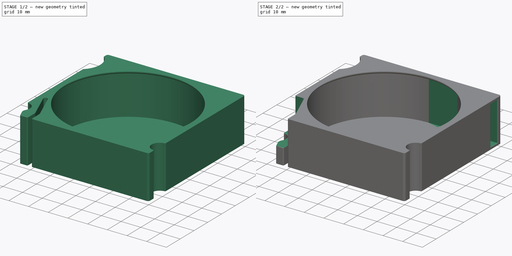
[diagram: build sequence overview — one tinted view per stage of 2, left to right]
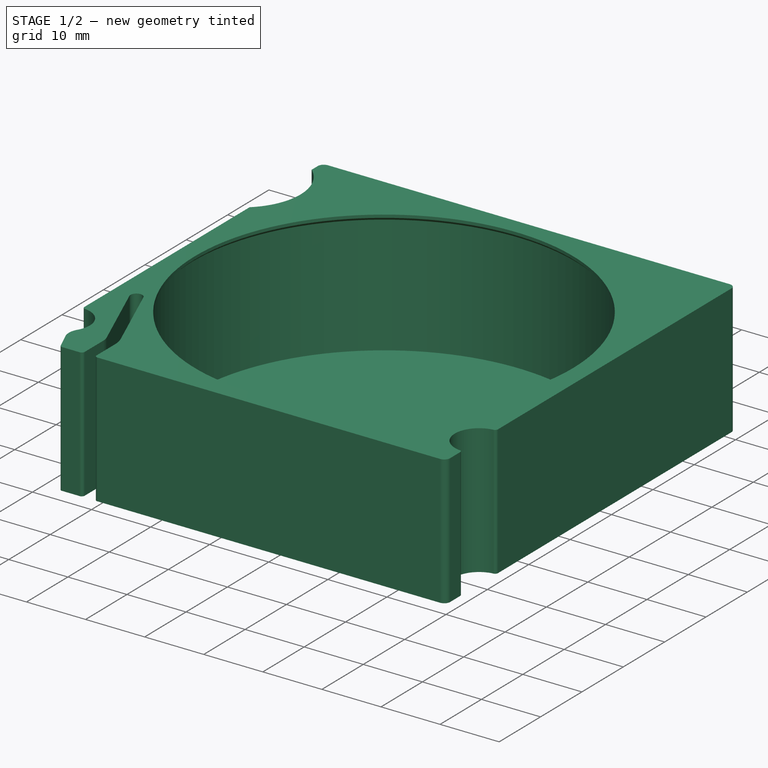
[diagram: stage 1 of 2 — iso view after this stage's code; geometry added in this stage tinted green]
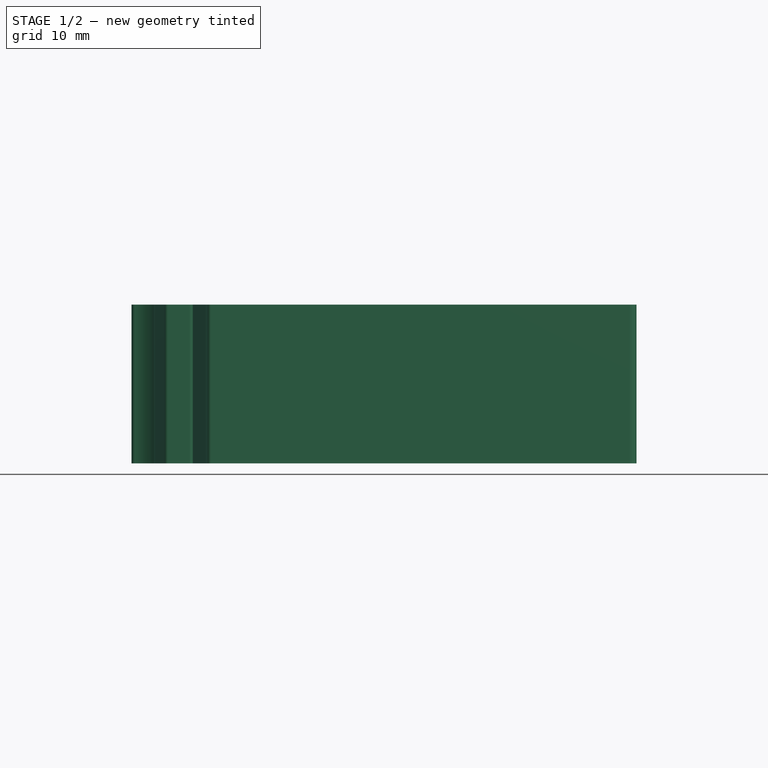
[diagram: stage 1 of 2 — front view after this stage's code; geometry added in this stage tinted green]
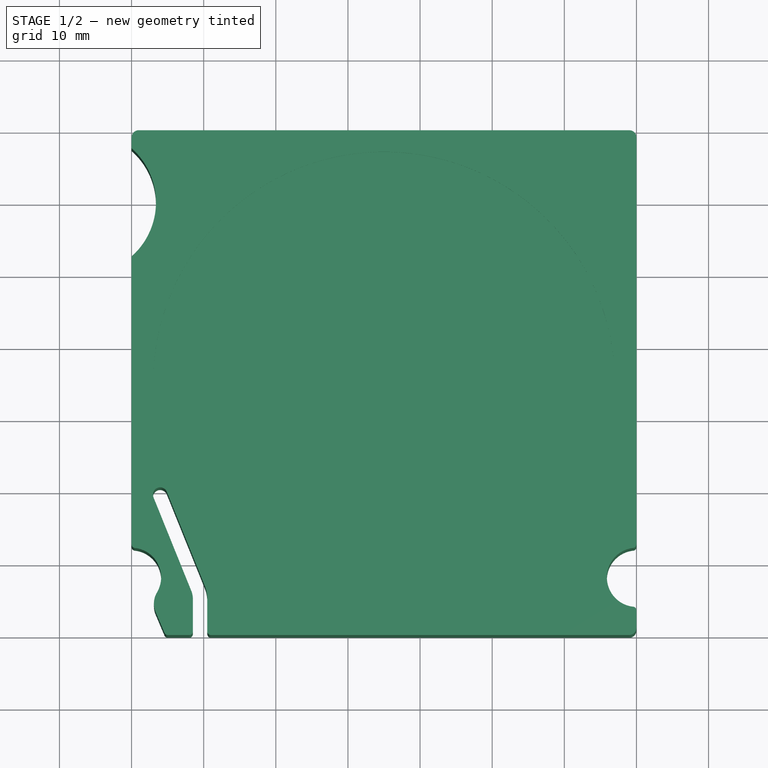
[diagram: stage 1 of 2 — top view after this stage's code; geometry added in this stage tinted green]
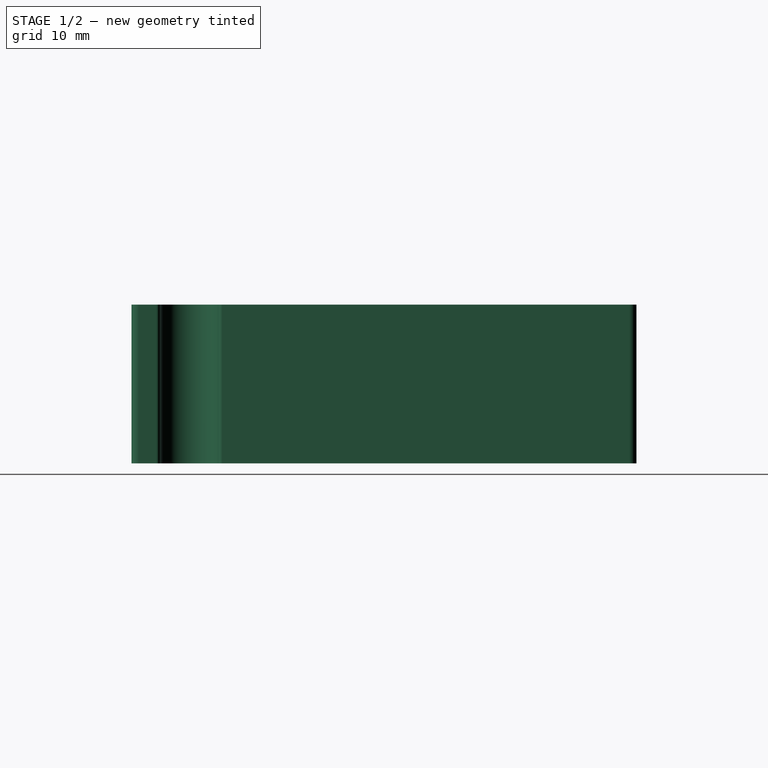
[diagram: stage 1 of 2 — right view after this stage's code; geometry added in this stage tinted green]
FCSTD DOCUMENT  (FreeCAD 0.19R24291 (Git))
Label: smdmagazine
License: All rights reserved
LicenseURL: http://en.wikipedia.org/wiki/All_rights_reserved
objects: Sketcher::SketchObject×4, PartDesign::Pocket×2, Spreadsheet::Sheet×1, PartDesign::Pad×1, PartDesign::Groove×1, PartDesign::Body×1
note: 13 computed .brp shape members not serialized (recipe doc carries the construction recipe); baked Part::Feature solids carry a one-line shape summary decoded from their .brp

FEATURE [Sketcher::SketchObject] Sketch
  FullyConstrained = false
  MapMode = 5
  Support = -> [XY_Plane001]
  expr: Constraints[63] = Spreadsheet.Length
  expr: Constraints[15] = Spreadsheet.Length / 2
  expr: Constraints[16] = Spreadsheet.Length / 2
  expr: Constraints[48] = Spreadsheet.DiameterRod
  expr: Constraints[67] = Spreadsheet.Length
  expr: Constraints[7] = Spreadsheet.RasiusBottom
  expr: Constraints[14] = Spreadsheet.Length - 5
  expr: Constraints[75] = Spreadsheet.DiameterRod / 2 + 3 - Spreadsheet.SpringCompression
  sketch-geometry (34):
    g0: LineSegment StartX=70 StartY=1 StartZ=0 EndX=70 EndY=3.4306 EndZ=0
    g1: LineSegment StartX=69 StartY=70 StartZ=0 EndX=1 EndY=70 EndZ=0
    g2: ArcOfCircle CenterX=1 CenterY=69 CenterZ=0 NormalX=0 NormalY=0 NormalZ=1 AngleXU=0 Radius=1 StartAngle=1.5708 EndAngle=3.14159
    g3: ArcOfCircle CenterX=69 CenterY=69 CenterZ=0 NormalX=0 NormalY=0 NormalZ=1 AngleXU=0 Radius=1 StartAngle=-1.8e-15 EndAngle=1.5708
    g4: GeomPoint X=70 Y=70 Z=0
    g5: ArcOfCircle CenterX=69 CenterY=1 CenterZ=0 NormalX=0 NormalY=0 NormalZ=1 AngleXU=0 Radius=1 StartAngle=4.71239 EndAngle=6.28319
    g6: ArcOfCircle CenterX=70 CenterY=8 CenterZ=0 NormalX=0 NormalY=0 NormalZ=1 AngleXU=0 Radius=4.1 StartAngle=1.69305 EndAngle=4.59013
    g7: LineSegment StartX=70 StartY=12.5694 StartZ=0 EndX=70 EndY=69 EndZ=0
    g8: LineSegment StartX=0 StartY=69 StartZ=0 EndX=0 EndY=67.5 EndZ=0
    g9: Circle CenterX=35 CenterY=35 CenterZ=0 NormalX=0 NormalY=0 NormalZ=1 AngleXU=0 Radius=32.5
    g10: ArcOfCircle CenterX=-5.4e-15 CenterY=8 CenterZ=0 NormalX=0 NormalY=0 NormalZ=1 AngleXU=0 Radius=4.1 StartAngle=5.74601 EndAngle=7.73173
    g11: ArcOfCircle CenterX=5.02547 CenterY=0.5 CenterZ=0 NormalX=0 NormalY=0 NormalZ=1 AngleXU=0 Radius=0.5 StartAngle=3.54302 EndAngle=4.71239
    g12: ArcOfCircle CenterX=6.1 CenterY=4.36682 CenterZ=0 NormalX=0 NormalY=0 NormalZ=1 AngleXU=0 Radius=3 StartAngle=2.60441 EndAngle=3.54302
    g13: LineSegment StartX=3.33849 StartY=3.19461 StartZ=0 EndX=4.56521 EndY=0.304635 EndZ=0
    g14: LineSegment StartX=69 StartY=0 StartZ=0 EndX=11 EndY=0 EndZ=0
    g15: LineSegment StartX=5.02547 StartY=1e-16 StartZ=0 EndX=8 EndY=1e-16 EndZ=0
    g16: ArcOfCircle CenterX=8 CenterY=0.5 CenterZ=0 NormalX=0 NormalY=0 NormalZ=1 AngleXU=0 Radius=0.5 StartAngle=4.71239 EndAngle=6.28319
    g17: LineSegment StartX=8.5 StartY=0.5 StartZ=0 EndX=8.5 EndY=5 EndZ=0
    g18: ArcOfCircle CenterX=11 CenterY=0.5 CenterZ=0 NormalX=0 NormalY=0 NormalZ=1 AngleXU=0 Radius=0.5 StartAngle=3.14159 EndAngle=4.71239
    g19: LineSegment StartX=10.5 StartY=0.5 StartZ=0 EndX=10.5 EndY=5 EndZ=0
    g20: ArcOfCircle CenterX=5.5 CenterY=5 CenterZ=0 NormalX=0 NormalY=0 NormalZ=1 AngleXU=0 Radius=3 StartAngle=0 EndAngle=0.383972
    g21: ArcOfCircle CenterX=5.5 CenterY=5 CenterZ=0 NormalX=0 NormalY=0 NormalZ=1 AngleXU=0 Radius=5 StartAngle=0 EndAngle=0.383972
    g22: LineSegment StartX=8.28155 StartY=6.12382 StartZ=0 EndX=3.03706 EndY=19.1044 EndZ=0
    g23: LineSegment StartX=10.1359 StartY=6.87303 StartZ=0 EndX=4.89143 EndY=19.8536 EndZ=0
    g24: ArcOfCircle CenterX=69.5 CenterY=12.5694 CenterZ=0 NormalX=0 NormalY=0 NormalZ=1 AngleXU=0 Radius=0.5 StartAngle=4.71239 EndAngle=6.28319
    g25: ArcOfCircle CenterX=69.5 CenterY=3.4306 CenterZ=0 NormalX=0 NormalY=0 NormalZ=1 AngleXU=0 Radius=0.5 StartAngle=0 EndAngle=1.5708
    g26: ArcOfCircle CenterX=0.5 CenterY=12.5694 CenterZ=0 NormalX=0 NormalY=0 NormalZ=1 AngleXU=0 Radius=0.5 StartAngle=3.14159 EndAngle=4.71239
    g27: ArcOfCircle CenterX=-6.61438 CenterY=60 CenterZ=0 NormalX=0 NormalY=0 NormalZ=1 AngleXU=0 Radius=10 StartAngle=5.43512 EndAngle=7.13125
    g28: LineSegment StartX=-1.8e-15 StartY=52.5 StartZ=0 EndX=-5.4e-15 EndY=12.5694 EndZ=0
    g29: ArcOfCircle CenterX=70 CenterY=8 CenterZ=0 NormalX=0 NormalY=0 NormalZ=1 AngleXU=0 Radius=65.9 StartAngle=3.14159 EndAngle=3.26329
    g30: ArcOfCircle CenterX=3.96424 CenterY=19.479 CenterZ=0 NormalX=0 NormalY=0 NormalZ=1 AngleXU=0 Radius=1 StartAngle=0.383972 EndAngle=1.5708
    g31: ArcOfCircle CenterX=3.96424 CenterY=19.479 CenterZ=0 NormalX=0 NormalY=0 NormalZ=1 AngleXU=0 Radius=1 StartAngle=1.5708 EndAngle=3.52556
    g32: LineSegment StartX=3.96424 StartY=19.479 StartZ=0 EndX=3.96424 EndY=20.479 EndZ=0
    g33: LineSegment StartX=4.89143 StartY=19.8536 StartZ=0 EndX=3.03706 EndY=19.1044 EndZ=0
  constraints (108):
    c: Horizontal(g1)
    c: Vertical(g0)
    c: PointOnObject(g4,g1)
    c: PointOnObject(g4,g0)
    c: Tangent(g1,g3) = -1.5708
    c: Tangent(g0,g5) = -1.5708
    c: Radius(g3) = 1
    c: Radius(g5) = 1
    c: PointOnObject(g6,g0)
    c: Tangent(g0,g7)
    c: Tangent(g7,g3) = -1.5708
    c: Coincident(g8,g2)
    c: Vertical(g8)
    c: PointOnObject(g2,g-2)
    c: Diameter(g9) = 65
    c: DistanceX(g-1,g9) = 35
    c: DistanceY(g-1,g9) = 35
    c: Coincident(g13,g12)
    c: Coincident(g13,g11)
    c: Coincident(g12,g10)
    c: Coincident(g14,g5)
    c: PointOnObject(g14,g-1)
    c: Horizontal(g14)
    c: Coincident(g15,g11)
    c: PointOnObject(g15,g-1)
    c: Horizontal(g15)
    c: Coincident(g16,g15)
    c: Coincident(g17,g16)
    c: Coincident(g18,g14)
    c: Coincident(g19,g18)
    c: Vertical(g19)
    c: Equal(g16,g18)
    c: Horizontal(g16,g18)
    c: Vertical(g17)
    c: Coincident(g20,g17)
    c: Coincident(g21,g20)
    c: Coincident(g21,g19)
    c: Coincident(g22,g20)
    c: Coincident(g23,g21)
    c: Tangent(g23,g21)
    c: Parallel(g23,g22)
    c: Equal(g6,g10)
    c: Equal(g16,g11)
    c: Tangent(g7,g24) = -1.5708
    c: Equal(g24,g25)
    c: Radius(g24) = 0.5
    c: Vertical(g28,g10)
    c: Vertical(g11,g11)
    c: Diameter(g10) = 8.2
    c: Equal(g11,g26)
    c: Angle(g-2,g13) = 0.401426
    c: Horizontal(g16,g16)
    c: Vertical(g18,g14)
    c: Vertical(g5,g5)
    c: Coincident(g28,g26)
    c: Radius(g18) = 0.5
    c: Coincident(g26,g10)
    c: Tangent(g12,g10)
    c: DistanceX(g16,g18) = 2
    c: Horizontal(g6,g10)
    c: Coincident(g25,g6)
    c: Coincident(g25,g0)
    c: Coincident(g6,g24)
    c: DistanceY(g5,g1) = 70
    c: Vertical(g1,g2)
    c: Horizontal(g2,g2)
    c: Coincident(g1,g2)
    c: DistanceX(g2,g3) = 70
    c: Vertical(g25,g6)
    c: Horizontal(g25,g0)
    c: Vertical(g6,g24)
    c: DistanceY(g5,g6) = 8
    c: Horizontal(g26,g28)
    c: Vertical(g26,g10)
    c: Radius(g12) = 3
    c: DistanceX(g10,g12) = 6.1
    c: Angle(g22,g17) = 2.75762
    c: Tangent(g11,g13)
    c: Horizontal(g20,g17)
    c: Distance(g23) = 14
    c: Horizontal(g17,g19)
    c: DistanceY(g14,g19) = 5
    c: Tangent(g20,g22)
    c: Radius(g20) = 3
    c: Equal(g3,g2)
    c: Radius(g27) = 10
    c: DistanceY(g27,g27) = 15
    c: DistanceY(g27,g1) = 10
    c: Coincident(g8,g27)
    c: Coincident(g28,g27)
    c: Tangent(g8,g28)
    c: Coincident(g29,g6)
    c: PointOnObject(g29,g10)
    c: Tangent(g29,g10)
    c: PointOnObject(g29,g-1)
    c: DistanceX(g-1,g18) = 10.5
    c: Coincident(g30,g23)
    c: Coincident(g31,g30)
    c: Coincident(g31,g22)
    c: Coincident(g31,g30)
    c: Coincident(g32,g30)
    c: Coincident(g32,g30)
    c: Vertical(g32)
    c: Coincident(g33,g23)
    c: Coincident(g33,g22)
    c: PointOnObject(g30,g33)
    c: Tangent(g22,g31)
    c: Tangent(g12,g13)
FEATURE [Spreadsheet::Sheet] Spreadsheet
  cells = A2=Length; B2(Length)=70; A3=TapeDepth; B3(TapeDepth)=20; A4=TapeSlot; B4(TapeSlot)=5; A5=RadiusTop; B5(RadiusTop)=5; A6=RasiusBottom; B6(RasiusBottom)=1; A7=DiameterRod; B7(DiameterRod)=8.199999999999999; A8=SpringCompression; B8(SpringCompression)=1
FEATURE [PartDesign::Pad] Pad  label="MainBody"
  Direction = (1,1,1)
  Length = 22
  Length2 = 100
  Profile = -> Sketch
  Type = 0
  expr: Length = Spreadsheet.TapeDepth + 2
FEATURE [Sketcher::SketchObject] Sketch001
  AttachmentOffset = pos=(35,0,-35) rot=(0,0,1;0rad)
  FullyConstrained = true
  MapMode = 5
  Placement = pos=(35,35,7.8e-15) rot=(1,0,0;1.5708rad)
  Support = -> [XZ_Plane001]
  expr: Constraints[15] = Spreadsheet.Length / 2 - 2.5
  expr: Constraints[16] = Spreadsheet.TapeDepth
  expr: .AttachmentOffset.Base.y = 0
  expr: .AttachmentOffset.Base.x = Spreadsheet.Length / 2
  expr: .AttachmentOffset.Base.z = -Spreadsheet.Length / 2
  sketch-geometry (6):
    g0: LineSegment StartX=0 StartY=1 StartZ=0 EndX=-32.5 EndY=1 EndZ=0
    g1: LineSegment StartX=-32.5 StartY=1 StartZ=0 EndX=-32.5 EndY=21 EndZ=0
    g2: LineSegment StartX=-32.5 StartY=21 StartZ=0 EndX=-32 EndY=21.5 EndZ=0
    g3: LineSegment StartX=-32 StartY=21.5 StartZ=0 EndX=-32 EndY=22 EndZ=0
    g4: LineSegment StartX=-32 StartY=22 StartZ=0 EndX=0 EndY=22 EndZ=0
    g5: LineSegment StartX=0 StartY=1 StartZ=0 EndX=0 EndY=22 EndZ=0
  constraints (18):
    c: Horizontal(g0)
    c: Coincident(g1,g0)
    c: Vertical(g1)
    c: Coincident(g2,g1)
    c: Coincident(g3,g2)
    c: Vertical(g3)
    c: Coincident(g4,g3)
    c: Horizontal(g4)
    c: Coincident(g5,g0)
    c: Coincident(g5,g4)
    c: Vertical(g5)
    c: Angle(g1,g2) = 2.35619
    c: DistanceY(g3,g3) = 0.5
    c: DistanceY(g1,g2) = 0.5
    c: DistanceY(g-1,g0) = 1
    c: DistanceX(g0,g0) = 32.5
    c: DistanceY(g1,g1) = 20
    c: Vertical(g0,g-1)
FEATURE [PartDesign::Groove] Groove  label="MainRecess"
  Angle = 360
  Axis = (0,-2e-16,1)
  Base = (35,35,7.8e-15)
  BaseFeature = -> Pad
  Profile = -> Sketch001
  ReferenceAxis = -> Sketch001 [V_Axis]
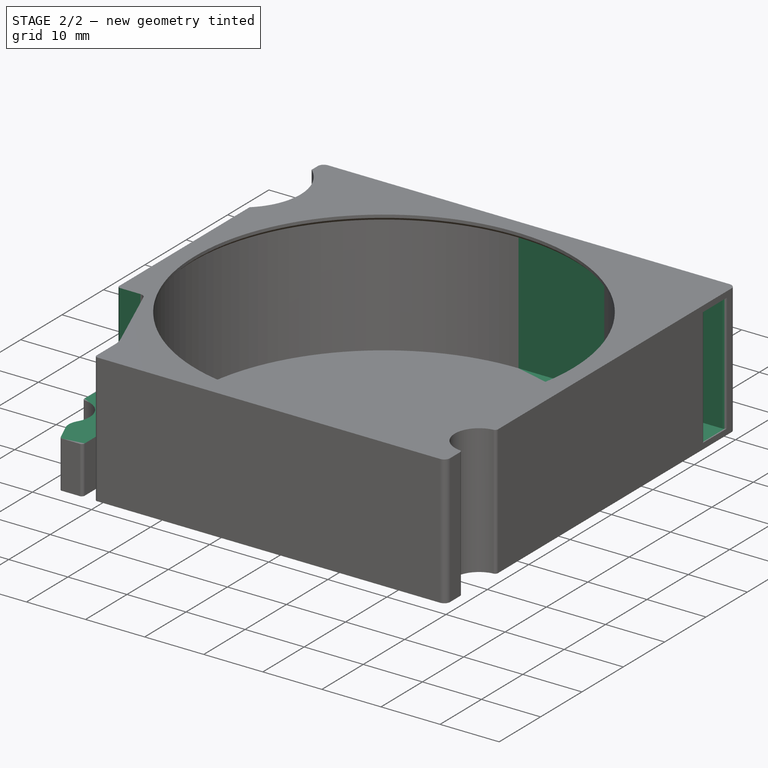
[diagram: stage 2 of 2 — iso view after this stage's code; geometry added in this stage tinted green]
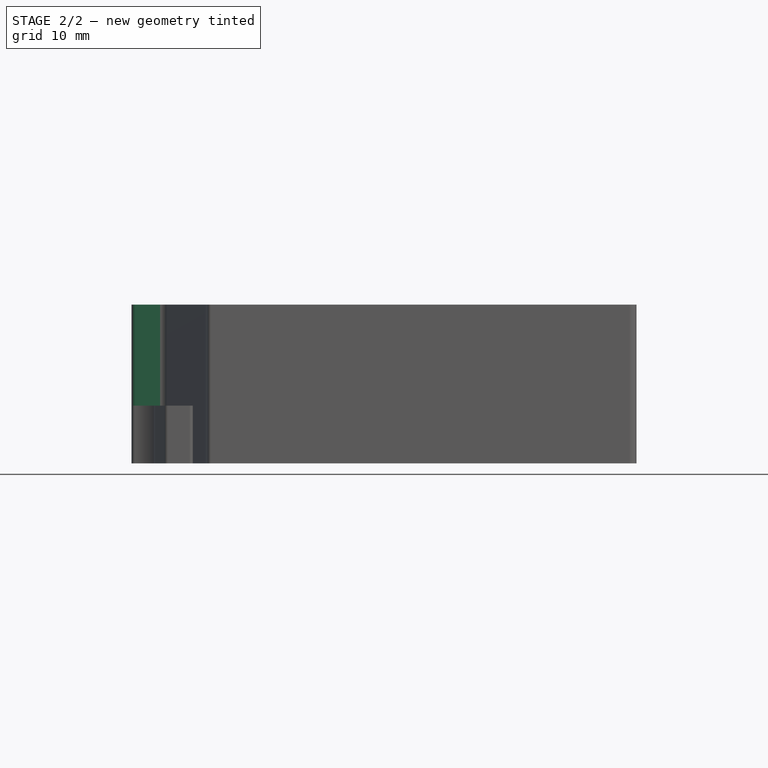
[diagram: stage 2 of 2 — front view after this stage's code; geometry added in this stage tinted green]
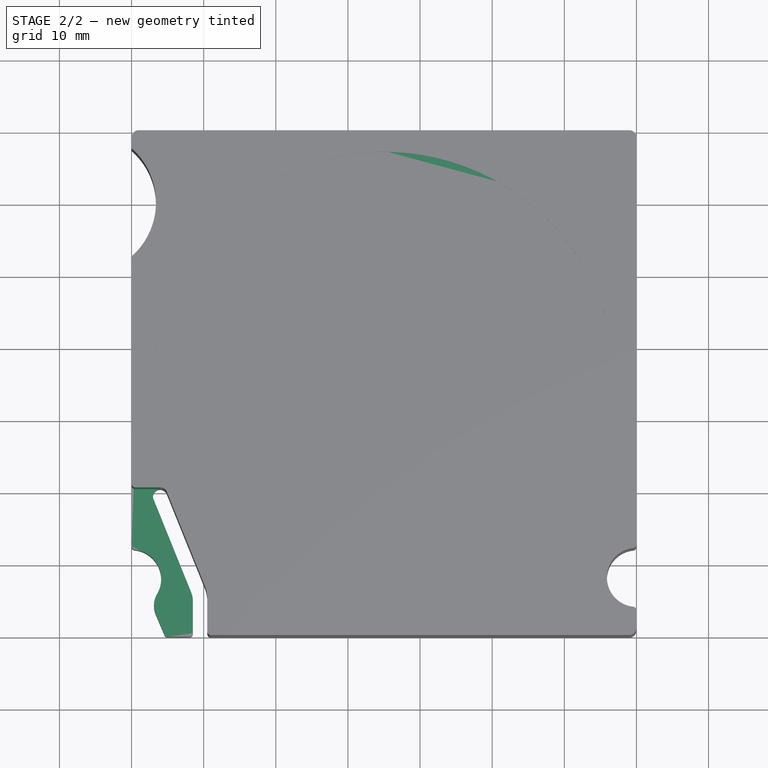
[diagram: stage 2 of 2 — top view after this stage's code; geometry added in this stage tinted green]
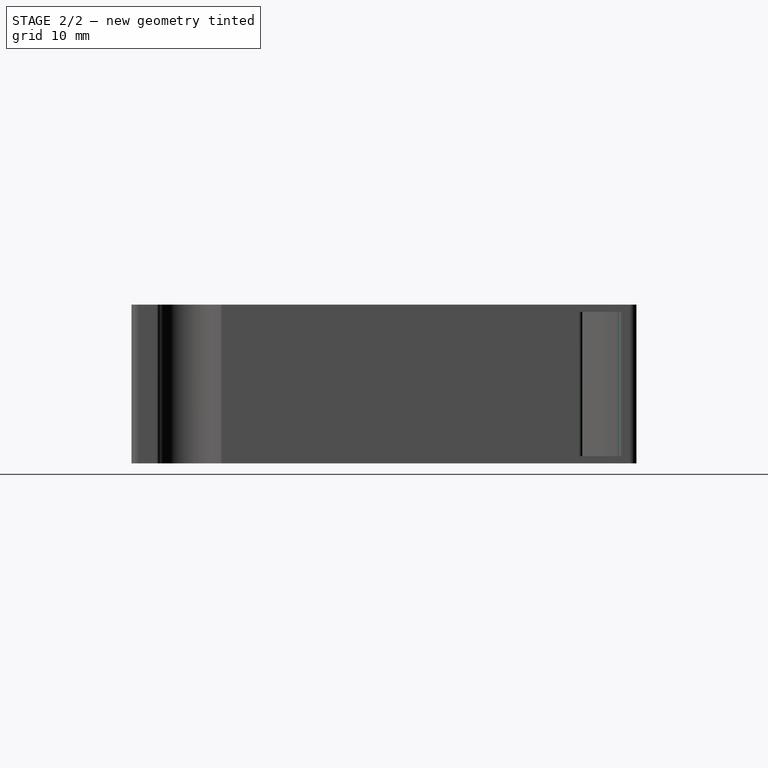
[diagram: stage 2 of 2 — right view after this stage's code; geometry added in this stage tinted green]
FEATURE [Sketcher::SketchObject] Sketch002
  AttachmentOffset = pos=(0,0,1) rot=(0,0,1;0rad)
  FullyConstrained = true
  MapMode = 5
  Placement = pos=(0,0,1) rot=(0,0,1;0rad)
  Support = -> [XY_Plane001]
  expr: Constraints[16] = Spreadsheet.Length
  expr: Constraints[15] = Spreadsheet.Length / 2 - 2.5
  expr: Constraints[17] = Spreadsheet.TapeSlot
  expr: Constraints[27] = Spreadsheet.Length
  expr: Constraints[2] = Spreadsheet.Length / 2
  expr: Constraints[3] = Spreadsheet.Length / 2
  sketch-geometry (24):
    g0: LineSegment StartX=35 StartY=67.5 StartZ=0 EndX=57.5 EndY=67.5 EndZ=0
    g1: ArcOfCircle CenterX=35 CenterY=35 CenterZ=0 NormalX=0 NormalY=0 NormalZ=1 AngleXU=0 Radius=32.5 StartAngle=0.958241 EndAngle=1.5708
    g2: ArcOfCircle CenterX=69.5 CenterY=68 CenterZ=0 NormalX=0 NormalY=0 NormalZ=1 AngleXU=0 Radius=0.5 StartAngle=4.71239 EndAngle=6.28319
    g3: ArcOfCircle CenterX=69.5 CenterY=62 CenterZ=0 NormalX=0 NormalY=0 NormalZ=1 AngleXU=0 Radius=0.5 StartAngle=-1.8e-15 EndAngle=1.5708
    g4: LineSegment StartX=70 StartY=68 StartZ=0 EndX=70 EndY=62 EndZ=0
    g5: ArcOfCircle CenterX=57.5 CenterY=68 CenterZ=0 NormalX=0 NormalY=0 NormalZ=1 AngleXU=0 Radius=0.5 StartAngle=4.71239 EndAngle=6.28319
    g6: ArcOfCircle CenterX=57.5 CenterY=69.5 CenterZ=0 NormalX=0 NormalY=0 NormalZ=1 AngleXU=0 Radius=0.5 StartAngle=2e-16 EndAngle=1.5708
    g7: LineSegment StartX=60 StartY=67.5 StartZ=0 EndX=62.3536 EndY=69.8536 EndZ=0
    g8: ArcOfCircle CenterX=62.7071 CenterY=69.5 CenterZ=0 NormalX=0 NormalY=0 NormalZ=1 AngleXU=0 Radius=0.5 StartAngle=1.5708 EndAngle=2.3562
    g9: LineSegment StartX=58 StartY=69.5 StartZ=0 EndX=58 EndY=68 EndZ=0
    g10: LineSegment StartX=60 StartY=67.5 StartZ=0 EndX=69.5 EndY=67.5 EndZ=0
    g11: LineSegment StartX=69.5 StartY=62.5 StartZ=0 EndX=53.9737 EndY=62.5 EndZ=0
    g12: ArcOfCircle CenterX=53.9737 CenterY=62 CenterZ=0 NormalX=0 NormalY=0 NormalZ=1 AngleXU=0 Radius=0.5 StartAngle=1.5708 EndAngle=4.09985
    g13: LineSegment StartX=57.5 StartY=70 StartZ=0 EndX=57.5 EndY=70.2 EndZ=0
    g14: LineSegment StartX=62.7071 StartY=70 StartZ=0 EndX=62.7071 EndY=70.2 EndZ=0
    g15: LineSegment StartX=62.7071 StartY=70.2 StartZ=0 EndX=57.5 EndY=70.2 EndZ=0
    g16: LineSegment StartX=70 StartY=68 StartZ=0 EndX=70.2 EndY=68 EndZ=0
    g17: LineSegment StartX=70.2 StartY=68 StartZ=0 EndX=70.2 EndY=62 EndZ=0
    g18: LineSegment StartX=70 StartY=62 StartZ=0 EndX=70.2 EndY=62 EndZ=0
    g19: ArcOfCircle CenterX=35 CenterY=35 CenterZ=0 NormalX=0 NormalY=0 NormalZ=1 AngleXU=0 Radius=32.3 StartAngle=0.958241 EndAngle=1.5708
    g20: LineSegment StartX=35 StartY=67.5 StartZ=0 EndX=35 EndY=67.3 EndZ=0
    g21: LineSegment StartX=53.6862 StartY=61.5909 StartZ=0 EndX=53.5712 EndY=61.4273 EndZ=0
    g22: LineSegment StartX=35 StartY=67.3 StartZ=0 EndX=35 EndY=35 EndZ=0
    g23: LineSegment StartX=35 StartY=35 StartZ=0 EndX=53.5712 EndY=61.4273 EndZ=0
  constraints (74):
    c: Horizontal(g0)
    c: Coincident(g1,g0)
    c: DistanceX(g-1,g1) = 35
    c: DistanceY(g-1,g1) = 35
    c: Vertical(g0,g1)
    c: Coincident(g2,g10)
    c: Vertical(g10,g3)
    c: Horizontal(g2,g2)
    c: Horizontal(g3,g3)
    c: Radius(g2) = 0.5
    c: Vertical(g2,g10)
    c: Vertical(g3,g3)
    c: Equal(g2,g3)
    c: Coincident(g4,g2)
    c: Coincident(g4,g3)
    c: Radius(g1) = 32.5
    c: DistanceX(g-1,g3) = 70
    c: DistanceY(g3,g10) = 5
    c: Coincident(g8,g7)
    c: Coincident(g9,g6)
    c: Coincident(g9,g5)
    c: Vertical(g9)
    c: Vertical(g5,g5)
    c: Vertical(g5,g6)
    c: Vertical(g6,g6)
    c: Horizontal(g5,g5)
    c: Horizontal(g6,g6)
    c: DistanceY(g-1,g6) = 70
    c: Tangent(g7,g8)
    c: Equal(g2,g6)
    c: Coincident(g0,g5)
    c: Tangent(g0,g10)
    c: Equal(g8,g6)
    c: DistanceX(g5,g10) = 2
    c: DistanceX(g10,g2) = 10
    c: Vertical(g8,g8)
    c: Angle(g10,g7) = 0.785398
    c: Coincident(g7,g10)
    c: Coincident(g11,g3)
    c: Horizontal(g11)
    c: Coincident(g12,g11)
    c: Coincident(g12,g1)
    c: Vertical(g12,g11)
    c: Tangent(g12,g1)
    c: Equal(g5,g12)
    c: Coincident(g13,g6)
    c: Coincident(g14,g8)
    c: Vertical(g14)
    c: Coincident(g15,g14)
    c: Coincident(g15,g13)
    c: Horizontal(g15)
    c: Vertical(g13)
    c: DistanceY(g14,g14) = 0.2
    c: Horizontal(g6,g8)
    c: Coincident(g16,g2)
    c: Coincident(g17,g16)
    c: Vertical(g17)
    c: Coincident(g18,g3)
    c: Coincident(g18,g17)
    c: Horizontal(g18)
    c: Horizontal(g16)
    c: DistanceX(g16,g16) = 0.2
    c: Coincident(g19,g1)
    c: Coincident(g20,g0)
    c: Coincident(g20,g19)
    c: Coincident(g21,g1)
    c: Coincident(g21,g19)
    c: Coincident(g22,g19)
    c: Coincident(g22,g1)
    c: Vertical(g22)
    c: Coincident(g23,g1)
    c: Coincident(g23,g19)
    c: Parallel(g21,g23)
    c: Distance(g21) = 0.2
FEATURE [PartDesign::Pocket] Pocket  label="Slot"
  BaseFeature = -> Groove
  Length = 20
  Length2 = 100
  Profile = -> Sketch002
  Refine = true
  Reversed = true
  Type = 0
  expr: Length = Spreadsheet.TapeDepth
FEATURE [Sketcher::SketchObject] Sketch003
  AttachmentOffset = pos=(0,0,22) rot=(0,0,1;0rad)
  FullyConstrained = true
  MapMode = 5
  Placement = pos=(0,0,22) rot=(0,0,1;0rad)
  Support = -> [XY_Plane001]
  expr: .AttachmentOffset.Base.z = Spreadsheet.TapeDepth + 2
  sketch-geometry (13):
    g0: LineSegment StartX=0 StartY=0 StartZ=0 EndX=10.5 EndY=0 EndZ=0
    g1: LineSegment StartX=10.5 StartY=0 StartZ=0 EndX=10.5 EndY=5 EndZ=0
    g2: ArcOfCircle CenterX=5.5 CenterY=5 CenterZ=0 NormalX=0 NormalY=0 NormalZ=1 AngleXU=0 Radius=5 StartAngle=6.28319 EndAngle=6.66715
    g3: LineSegment StartX=10.1359 StartY=6.873 StartZ=0 EndX=4.89144 EndY=19.8536 EndZ=0
    g4: ArcOfCircle CenterX=3.96425 CenterY=19.479 CenterZ=0 NormalX=0 NormalY=0 NormalZ=1 AngleXU=0 Radius=1 StartAngle=0.383973 EndAngle=1.5708
    g5: LineSegment StartX=0 StartY=20.979 StartZ=0 EndX=0 EndY=0 EndZ=0
    g6: ArcOfCircle CenterX=0.5 CenterY=20.979 CenterZ=0 NormalX=0 NormalY=0 NormalZ=1 AngleXU=0 Radius=0.5 StartAngle=3.14159 EndAngle=4.71239
    g7: LineSegment StartX=3.96425 StartY=20.479 StartZ=0 EndX=0.5 EndY=20.479 EndZ=0
    g8: LineSegment StartX=0 StartY=20.979 StartZ=0 EndX=-0.2 EndY=20.979 EndZ=0
    g9: LineSegment StartX=-0.2 StartY=20.979 StartZ=0 EndX=-0.2 EndY=-0.2 EndZ=0
    g10: LineSegment StartX=-0.2 StartY=-0.2 StartZ=0 EndX=10.5 EndY=-0.2 EndZ=0
    g11: LineSegment StartX=10.5 StartY=0 StartZ=0 EndX=10.5 EndY=-0.2 EndZ=0
    g12: LineSegment StartX=3.96425 StartY=20.479 StartZ=0 EndX=3.96425 EndY=19.479 EndZ=0
  constraints (39):
    c: Coincident(g0,g-1)
    c: PointOnObject(g0,g-1)
    c: Coincident(g1,g0)
    c: Vertical(g1)
    c: Coincident(g2,g1)
    c: Coincident(g3,g2)
    c: Coincident(g4,g3)
    c: Coincident(g5,g0)
    c: Tangent(g3,g2)
    c: Tangent(g1,g2)
    c: DistanceX(g0,g0) = 10.5
    c: DistanceY(g1,g1) = 5
    c: Radius(g2) = 5
    c: Tangent(g3,g4)
    c: Radius(g4) = 1
    c: Angle(g3,g1) = 2.75762
    c: Distance(g3) = 14
    c: Coincident(g7,g4)
    c: Coincident(g7,g6)
    c: Horizontal(g7)
    c: Tangent(g4,g7)
    c: Vertical(g6,g6)
    c: Horizontal(g6,g6)
    c: Coincident(g5,g6)
    c: Vertical(g5)
    c: Radius(g6) = 0.5
    c: Coincident(g8,g5)
    c: Horizontal(g8)
    c: Coincident(g9,g8)
    c: Vertical(g9)
    c: Coincident(g10,g9)
    c: Horizontal(g10)
    c: Coincident(g11,g0)
    c: Coincident(g11,g10)
    c: Vertical(g11)
    c: DistanceY(g11,g11) = 0.2
    c: DistanceX(g9,g0) = 0.2
    c: Coincident(g12,g4)
    c: Coincident(g12,g4)
FEATURE [PartDesign::Pocket] Pocket001
  BaseFeature = -> Pocket
  Length = 14
  Length2 = 100
  Profile = -> Sketch003
  Type = 0
  expr: Length = Spreadsheet.TapeDepth + 2 - 8
FEATURE [PartDesign::Body] Body  label="MagazineBody"
  Group = -> [Sketch,Pad,Sketch001,Groove,Sketch002,Pocket,Sketch003,Pocket001]
  Origin = -> Origin001
  Tip = -> Pocket001
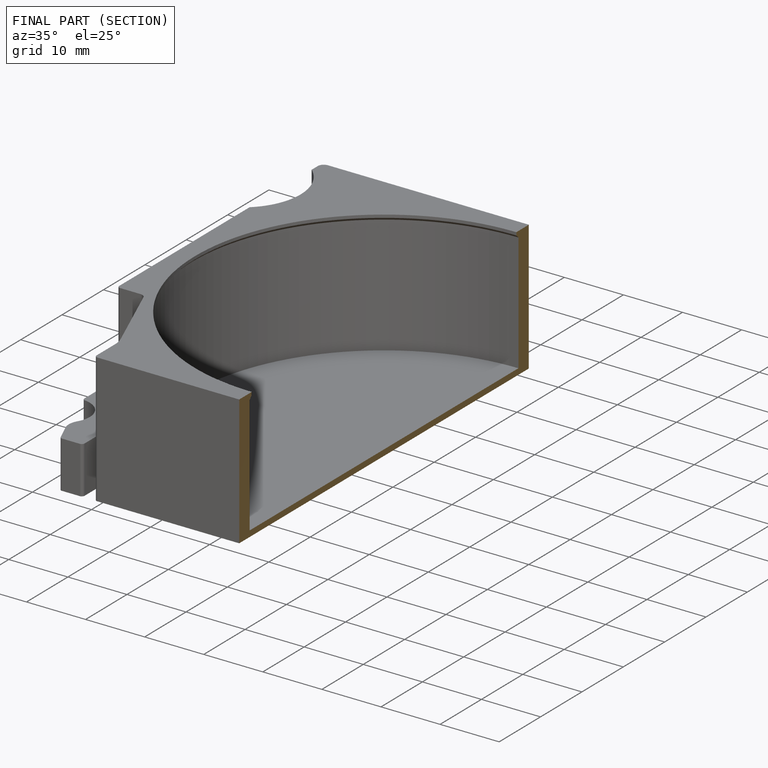
[diagram: finished part — half-section view (interior)]
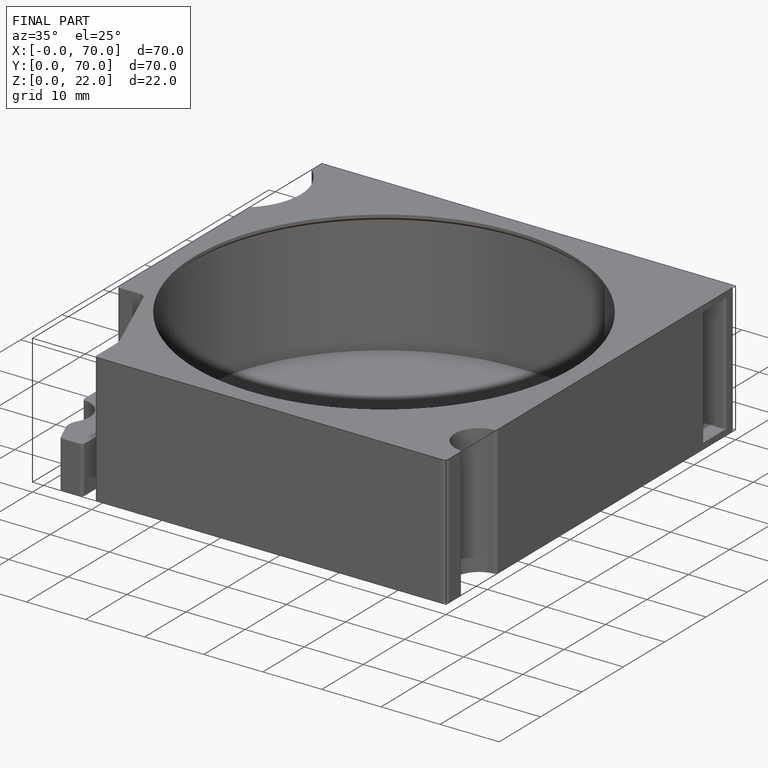
[diagram: finished part — iso view with bounding-box wireframe]
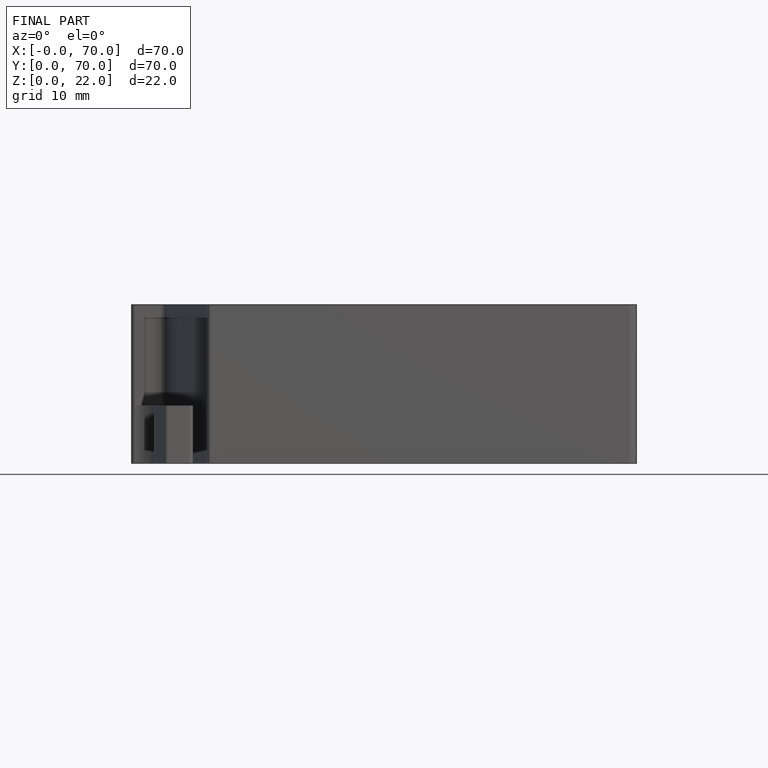
[diagram: finished part — front view with bounding-box wireframe]
